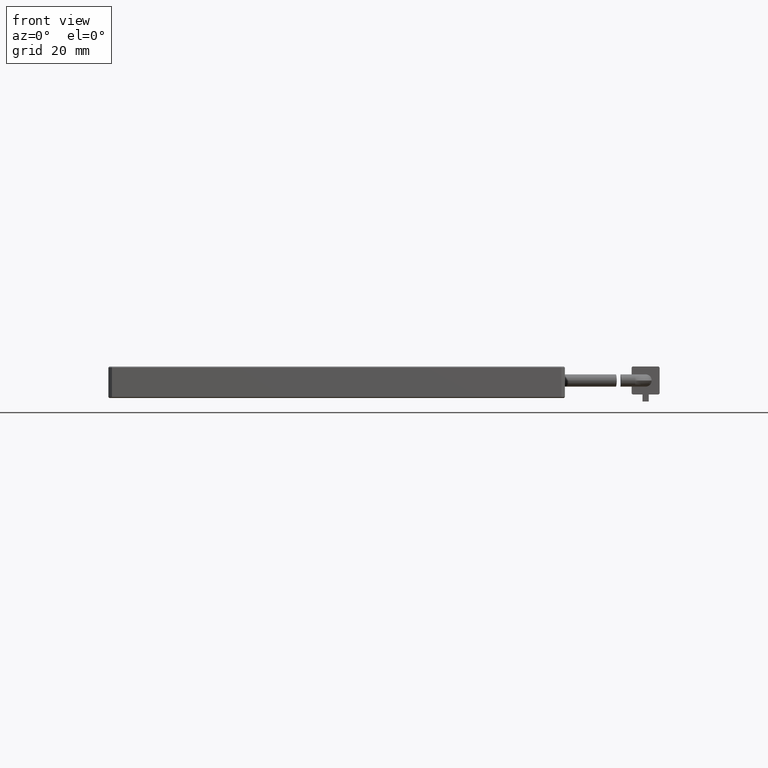
[diagram: clean part render]
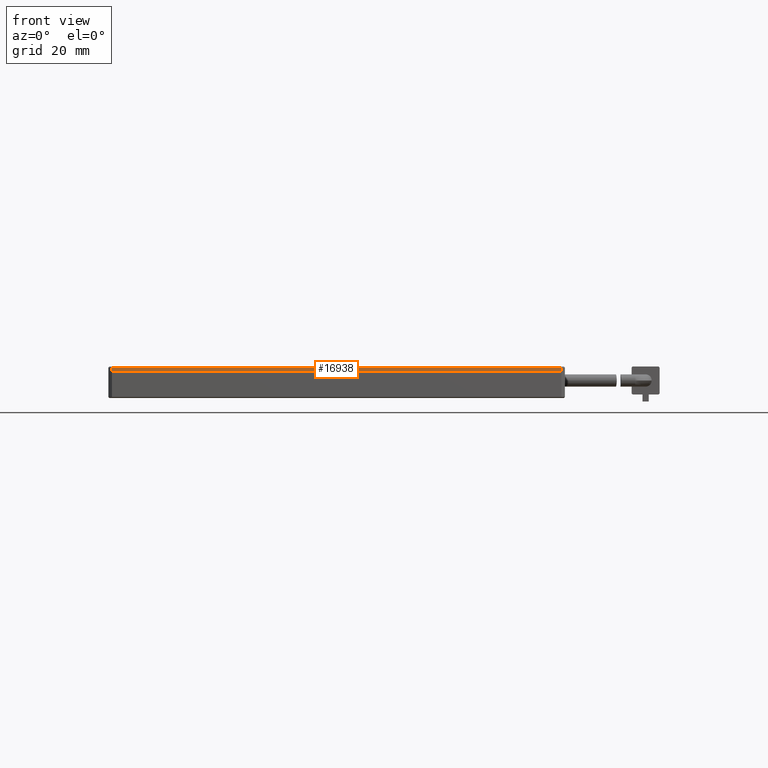
[diagram: same view with one face highlighted and labeled with its STEP entity id]
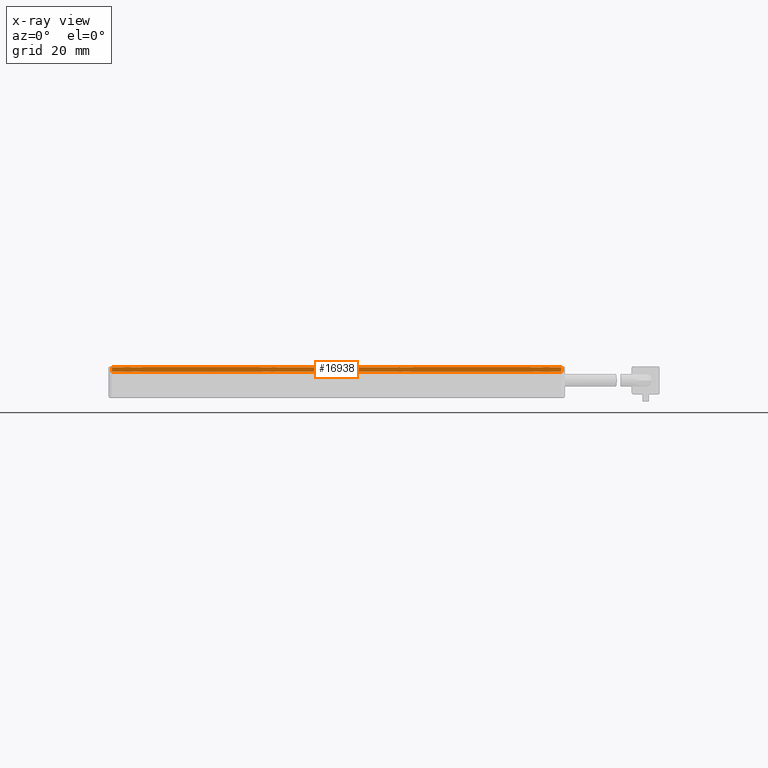
[diagram: x-ray of the same camera — body ghosted, the highlighted face saturated]
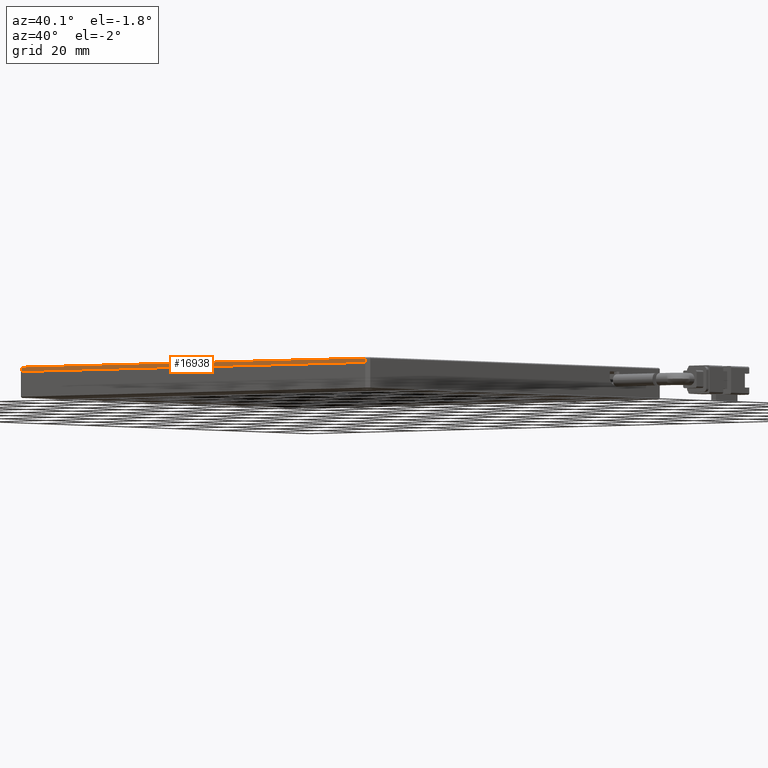
[diagram: same view with one face highlighted and labeled with its STEP entity id]
A machine part, front view. The second image highlights one B-rep face of the part: STEP entity #16938.
The next image is the same camera in x-ray: the body ghosted, the highlighted face saturated — about 0% of this face is hidden behind the body in this view.
A second angle (auxiliary view) of the same face is appended — the face is thin or edge-on in the first view.
In plain terms, the highlighted planar face has unit normal (0, 1, 0).
Its self-contained STEP definition (entity closure, byte-faithful):
#280 = CARTESIAN_POINT ( 'NONE',  ( -38.87092592592590300, -40.94055555555552700, 5.699999999999967300 ) ) ;
#392 = CARTESIAN_POINT ( 'NONE',  ( -38.87092592592590300, -40.94055555555552700, 6.000000000000000000 ) ) ;
#2282 = CARTESIAN_POINT ( 'NONE',  ( 90.12907407407409700, -40.94055555555552700, 4.500000000000000000 ) ) ;
#2460 = ORIENTED_EDGE ( 'NONE', *, *, #4824, .T. ) ;
#3859 = FACE_OUTER_BOUND ( 'NONE', #10833, .T. ) ;
#4358 = VERTEX_POINT ( 'NONE', #7659 ) ;
#4824 = EDGE_CURVE ( 'NONE', #14221, #18304, #8245, .T. ) ;
#5110 = LINE ( 'NONE', #280, #11506 ) ;
#5171 = DIRECTION ( 'NONE',  ( -0.0000000000000000000, 0.0000000000000000000, -1.000000000000000000 ) ) ;
#5556 = LINE ( 'NONE', #11779, #7983 ) ;
#6329 = CARTESIAN_POINT ( 'NONE',  ( -37.87092592592590300, -40.94055555555552700, 6.000000000000000000 ) ) ;
#6937 = CARTESIAN_POINT ( 'NONE',  ( -37.87092592592589600, -40.94055555555553400, 5.699999999999972600 ) ) ;
#7659 = CARTESIAN_POINT ( 'NONE',  ( 90.12907407407409700, -40.94055555555552700, 5.699999999999977100 ) ) ;
#7983 = VECTOR ( 'NONE', #5171, 1000.000000000000000 ) ;
#8013 = DIRECTION ( 'NONE',  ( -0.0000000000000000000, 0.0000000000000000000, -1.000000000000000000 ) ) ;
#8245 = LINE ( 'NONE', #6329, #8986 ) ;
#8986 = VECTOR ( 'NONE', #8013, 1000.000000000000000 ) ;
#9535 = DIRECTION ( 'NONE',  ( -1.000000000000000000, 0.0000000000000000000, -0.0000000000000000000 ) ) ;
#9553 = DIRECTION ( 'NONE',  ( 0.0000000000000000000, -0.0000000000000000000, 1.000000000000000000 ) ) ;
#9764 = PLANE ( 'NONE',  #19856 ) ;
#10833 = EDGE_LOOP ( 'NONE', ( #16892, #2460, #17183, #19270 ) ) ;
#11368 = DIRECTION ( 'NONE',  ( 0.0000000000000000000, 1.000000000000000000, 0.0000000000000000000 ) ) ;
#11506 = VECTOR ( 'NONE', #14374, 1000.000000000000000 ) ;
#11779 = CARTESIAN_POINT ( 'NONE',  ( 90.12907407407409700, -40.94055555555552700, 6.000000000000000000 ) ) ;
#12985 = VECTOR ( 'NONE', #9535, 1000.000000000000000 ) ;
#13494 = LINE ( 'NONE', #19048, #12985 ) ;
#14073 = EDGE_CURVE ( 'NONE', #19688, #18304, #13494, .T. ) ;
#14221 = VERTEX_POINT ( 'NONE', #6937 ) ;
#14374 = DIRECTION ( 'NONE',  ( 1.000000000000000000, 0.0000000000000000000, -0.0000000000000000000 ) ) ;
#16359 = EDGE_CURVE ( 'NONE', #14221, #4358, #5110, .T. ) ;
#16892 = ORIENTED_EDGE ( 'NONE', *, *, #16359, .F. ) ;
#16912 = CARTESIAN_POINT ( 'NONE',  ( -37.87092592592588100, -40.94055555555552700, 4.500000000000000900 ) ) ;
#16938 = ADVANCED_FACE ( 'NONE', ( #3859 ), #9764, .F. ) ;
#17116 = EDGE_CURVE ( 'NONE', #4358, #19688, #5556, .T. ) ;
#17183 = ORIENTED_EDGE ( 'NONE', *, *, #14073, .F. ) ;
#18304 = VERTEX_POINT ( 'NONE', #16912 ) ;
#19048 = CARTESIAN_POINT ( 'NONE',  ( -38.87092592592590300, -40.94055555555552700, 4.500000000000000900 ) ) ;
#19270 = ORIENTED_EDGE ( 'NONE', *, *, #17116, .F. ) ;
#19688 = VERTEX_POINT ( 'NONE', #2282 ) ;
#19856 = AXIS2_PLACEMENT_3D ( 'NONE', #392, #11368, #9553 ) ;